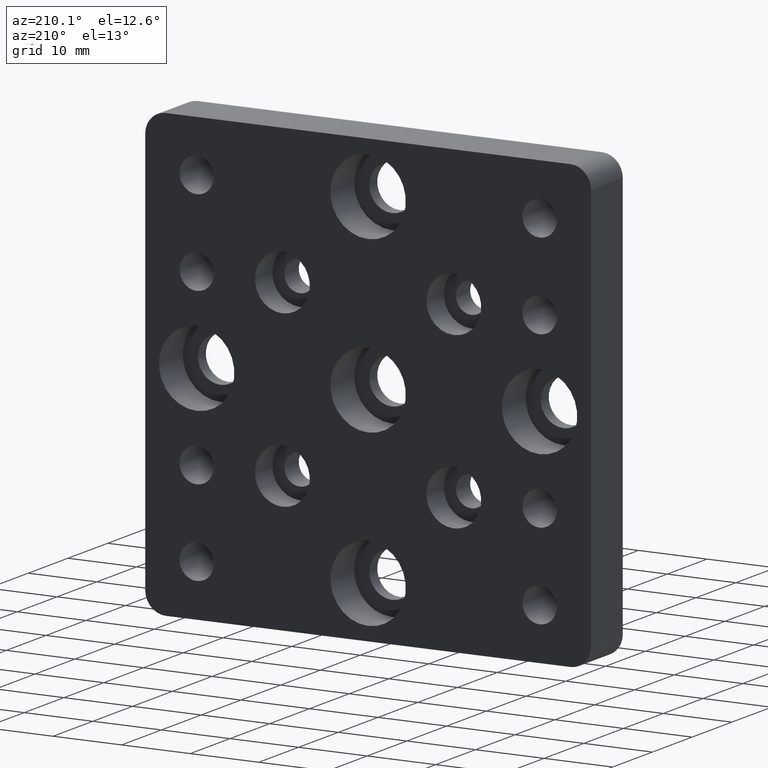
[diagram: clean part render]
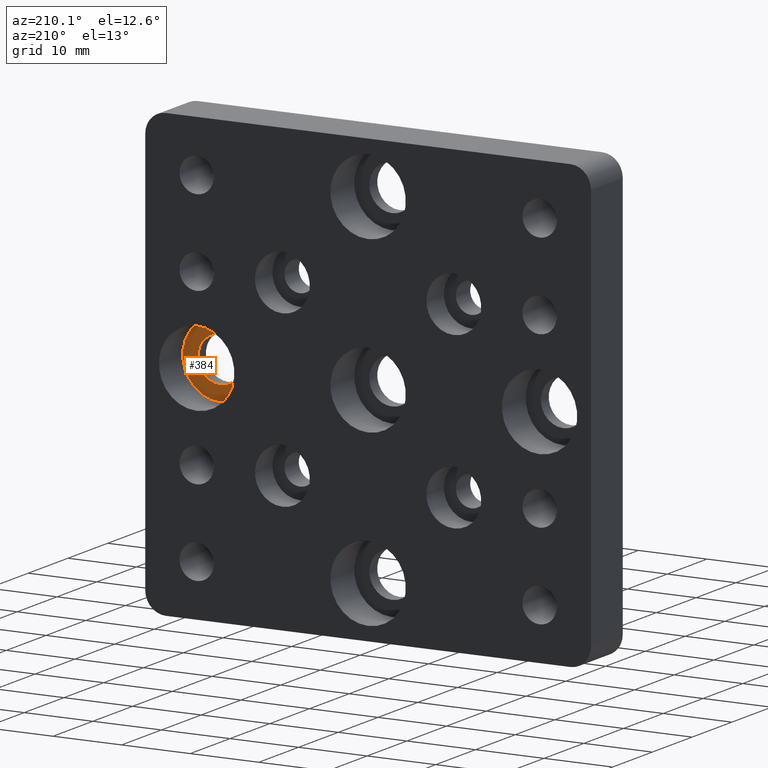
[diagram: same view with one face highlighted and labeled with its STEP entity id]
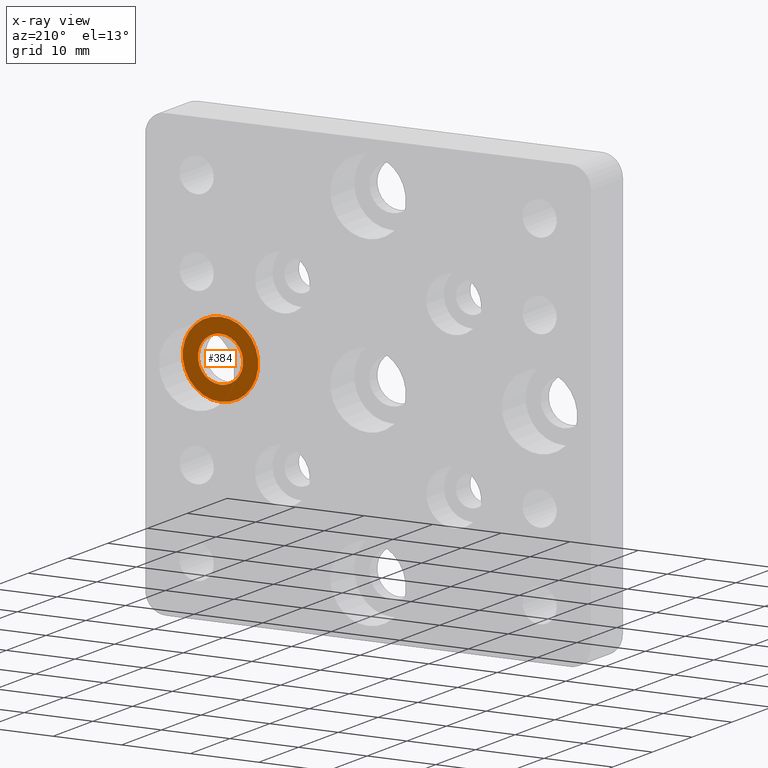
[diagram: x-ray of the same camera — body ghosted, the highlighted face saturated]
A machine part, auxiliary view. The second image highlights one B-rep face of the part: STEP entity #384.
The next image is the same camera in x-ray: the body ghosted, the highlighted face saturated — about 0% of this face is hidden behind the body in this view.
In plain terms, the highlighted planar face has unit normal (0, -1, 0).
Its self-contained STEP definition (entity closure, byte-faithful):
#13 = EDGE_CURVE ( 'NONE', #2043, #1247, #105, .T. ) ;
#48 = AXIS2_PLACEMENT_3D ( 'NONE', #952, #2059, #1850 ) ;
#105 = CIRCLE ( 'NONE', #1630, 5.499999999999994700 ) ;
#128 = CIRCLE ( 'NONE', #784, 5.499999999999994700 ) ;
#261 = CARTESIAN_POINT ( 'NONE',  ( 25.00000000000000000, 2.000000000000001800, -5.499999999999994700 ) ) ;
#277 = EDGE_CURVE ( 'NONE', #1166, #2154, #1609, .T. ) ;
#314 = EDGE_LOOP ( 'NONE', ( #2129, #2327 ) ) ;
#332 = DIRECTION ( 'NONE',  ( 0.0000000000000000000, -1.000000000000000000, 0.0000000000000000000 ) ) ;
#344 = DIRECTION ( 'NONE',  ( 0.0000000000000000000, 0.0000000000000000000, 1.000000000000000000 ) ) ;
#376 = DIRECTION ( 'NONE',  ( -0.0000000000000000000, 1.000000000000000000, -0.0000000000000000000 ) ) ;
#384 = ADVANCED_FACE ( 'NONE', ( #2149, #1259 ), #1584, .F. ) ;
#508 = CARTESIAN_POINT ( 'NONE',  ( 25.00000000000000000, 2.000000000000001800, 3.300000000000011400 ) ) ;
#513 = CARTESIAN_POINT ( 'NONE',  ( 28.30000000000001100, 2.000000000000001800, 0.0000000000000000000 ) ) ;
#602 = DIRECTION ( 'NONE',  ( -0.0000000000000000000, 1.000000000000000000, -0.0000000000000000000 ) ) ;
#777 = CARTESIAN_POINT ( 'NONE',  ( 25.00000000000000000, 2.000000000000001800, 5.499999999999994700 ) ) ;
#784 = AXIS2_PLACEMENT_3D ( 'NONE', #1495, #602, #1318 ) ;
#855 = DIRECTION ( 'NONE',  ( 0.0000000000000000000, -0.0000000000000000000, -1.000000000000000000 ) ) ;
#952 = CARTESIAN_POINT ( 'NONE',  ( 25.00000000000000000, 2.000000000000001800, 0.0000000000000000000 ) ) ;
#1018 = DIRECTION ( 'NONE',  ( 0.0000000000000000000, 0.0000000000000000000, 1.000000000000000000 ) ) ;
#1166 = VERTEX_POINT ( 'NONE', #2220 ) ;
#1196 = EDGE_CURVE ( 'NONE', #1247, #2043, #128, .T. ) ;
#1206 = CARTESIAN_POINT ( 'NONE',  ( 25.00000000000000000, 2.000000000000001800, 0.0000000000000000000 ) ) ;
#1239 = CARTESIAN_POINT ( 'NONE',  ( 25.00000000000000000, 2.000000000000001800, 0.0000000000000000000 ) ) ;
#1247 = VERTEX_POINT ( 'NONE', #261 ) ;
#1259 = FACE_OUTER_BOUND ( 'NONE', #314, .T. ) ;
#1318 = DIRECTION ( 'NONE',  ( 0.0000000000000000000, 0.0000000000000000000, 1.000000000000000000 ) ) ;
#1446 = EDGE_LOOP ( 'NONE', ( #2188, #1984 ) ) ;
#1495 = CARTESIAN_POINT ( 'NONE',  ( 25.00000000000000000, 2.000000000000001800, 0.0000000000000000000 ) ) ;
#1584 = PLANE ( 'NONE',  #2160 ) ;
#1609 = CIRCLE ( 'NONE', #1941, 3.300000000000011400 ) ;
#1630 = AXIS2_PLACEMENT_3D ( 'NONE', #1239, #376, #344 ) ;
#1672 = EDGE_CURVE ( 'NONE', #2154, #1166, #2173, .T. ) ;
#1746 = DIRECTION ( 'NONE',  ( -0.0000000000000000000, 1.000000000000000000, -0.0000000000000000000 ) ) ;
#1850 = DIRECTION ( 'NONE',  ( 0.0000000000000000000, 0.0000000000000000000, 1.000000000000000000 ) ) ;
#1941 = AXIS2_PLACEMENT_3D ( 'NONE', #1206, #1746, #1018 ) ;
#1984 = ORIENTED_EDGE ( 'NONE', *, *, #277, .F. ) ;
#2043 = VERTEX_POINT ( 'NONE', #777 ) ;
#2059 = DIRECTION ( 'NONE',  ( -0.0000000000000000000, 1.000000000000000000, -0.0000000000000000000 ) ) ;
#2129 = ORIENTED_EDGE ( 'NONE', *, *, #13, .T. ) ;
#2149 = FACE_BOUND ( 'NONE', #1446, .T. ) ;
#2154 = VERTEX_POINT ( 'NONE', #508 ) ;
#2160 = AXIS2_PLACEMENT_3D ( 'NONE', #513, #332, #855 ) ;
#2173 = CIRCLE ( 'NONE', #48, 3.300000000000011400 ) ;
#2188 = ORIENTED_EDGE ( 'NONE', *, *, #1672, .F. ) ;
#2220 = CARTESIAN_POINT ( 'NONE',  ( 25.00000000000000000, 2.000000000000001800, -3.300000000000010900 ) ) ;
#2327 = ORIENTED_EDGE ( 'NONE', *, *, #1196, .T. ) ;